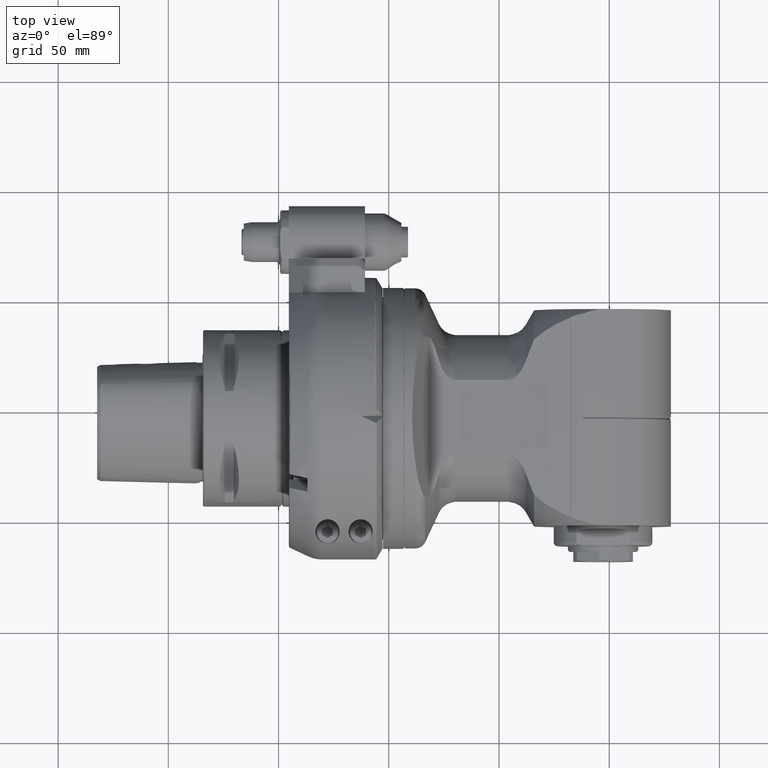
[diagram: clean part render]
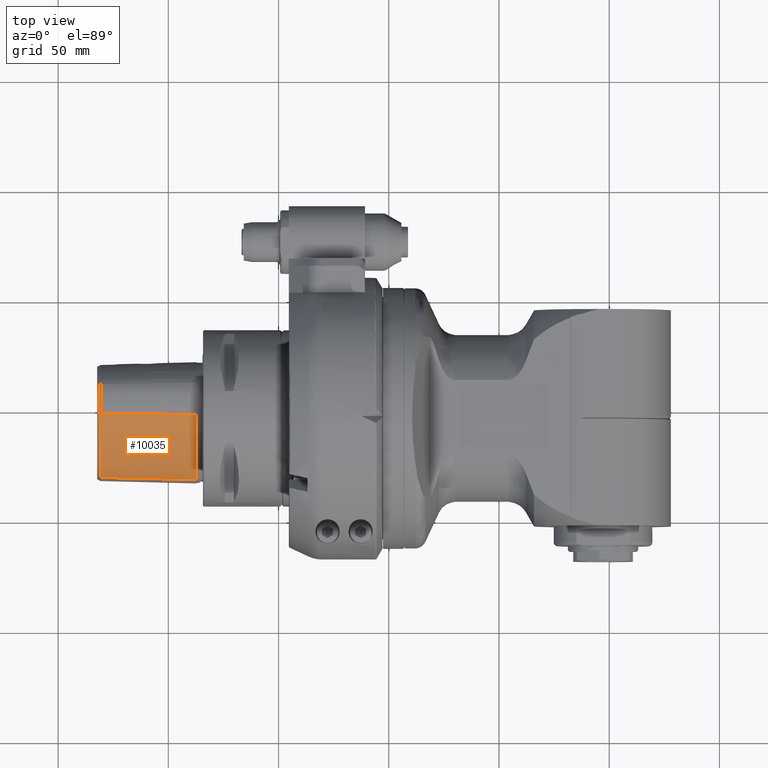
[diagram: same view with one face highlighted and labeled with its STEP entity id]
A machine part, top view. The second image highlights one B-rep face of the part: STEP entity #10035.
In plain terms, the highlighted face is a freeform B-spline surface patch.
Its self-contained STEP definition (entity closure, byte-faithful):
#29=B_SPLINE_SURFACE_WITH_KNOTS('',3,3,((#35080,#35081,#35082,#35083),(#35084,
#35085,#35086,#35087),(#35088,#35089,#35090,#35091),(#35092,#35093,#35094,
#35095),(#35096,#35097,#35098,#35099),(#35100,#35101,#35102,#35103),(#35104,
#35105,#35106,#35107),(#35108,#35109,#35110,#35111),(#35112,#35113,#35114,
#35115),(#35116,#35117,#35118,#35119),(#35120,#35121,#35122,#35123),(#35124,
#35125,#35126,#35127),(#35128,#35129,#35130,#35131),(#35132,#35133,#35134,
#35135),(#35136,#35137,#35138,#35139),(#35140,#35141,#35142,#35143),(#35144,
#35145,#35146,#35147),(#35148,#35149,#35150,#35151),(#35152,#35153,#35154,
#35155),(#35156,#35157,#35158,#35159),(#35160,#35161,#35162,#35163),(#35164,
#35165,#35166,#35167),(#35168,#35169,#35170,#35171),(#35172,#35173,#35174,
#35175),(#35176,#35177,#35178,#35179),(#35180,#35181,#35182,#35183),(#35184,
#35185,#35186,#35187),(#35188,#35189,#35190,#35191),(#35192,#35193,#35194,
#35195),(#35196,#35197,#35198,#35199),(#35200,#35201,#35202,#35203),(#35204,
#35205,#35206,#35207),(#35208,#35209,#35210,#35211)),.UNSPECIFIED.,.F.,
 .F.,.F.,(4,1,1,1,1,1,1,1,1,1,1,1,1,1,1,1,1,1,1,1,1,1,1,1,1,1,1,1,1,1,4),
(4,4),(-0.009678895987735,0.,1.755812057357E-5,0.02654417643325,0.05307082485072,
0.1061241216856,0.1326507701031,0.1459140943118,0.1591774225416,0.2122307382911,
0.2652840540407,0.2918107119155,0.3050740521438,0.3183374067492,0.4244442435926,
0.4655553216308,0.4861108770295,0.5066664422288,0.5888887030262,0.6299999136037,
0.650555523362,0.6711110941576,0.7533333676004,0.7944445043218,0.8355556165585,
0.9177778114212,0.9588889088526,0.9794444575682,0.9897222319261,1.,1.009959426524),
(0.3837668064959,0.60877464925),.UNSPECIFIED.);
#507=B_SPLINE_CURVE_WITH_KNOTS('',3,(#32485,#32486,#32487,#32488,#32489,
#32490,#32491,#32492,#32493,#32494,#32495,#32496),.UNSPECIFIED.,.F.,.F.,
(4,2,2,2,2,4),(-3.73515986466552,-3.2483887379573,-2.76792969662513,-1.81700921961345,
-0.907348478544817,-3.75621877282529E-5),.UNSPECIFIED.);
#515=B_SPLINE_CURVE_WITH_KNOTS('',3,(#34739,#34740,#34741,#34742,#34743,
#34744,#34745,#34746,#34747,#34748,#34749,#34750,#34751,#34752,#34753,#34754,
#34755,#34756,#34757,#34758,#34759,#34760,#34761,#34762,#34763,#34764,#34765,
#34766,#34767,#34768,#34769,#34770,#34771,#34772,#34773,#34774,#34775,#34776,
#34777,#34778,#34779,#34780,#34781,#34782,#34783,#34784,#34785,#34786,#34787,
#34788),.UNSPECIFIED.,.F.,.F.,(4,2,2,2,2,2,2,2,2,2,2,2,2,2,2,2,2,2,2,2,
2,2,2,2,4),(-3.62964790689344,-3.57366447870279,-3.5179251921807,-3.40636005816045,
-3.1827421152075,-3.03340532054786,-2.83405301358595,-2.56740587779593,
-2.41500930581448,-2.33376446134251,-2.14769455285171,-1.93504734590621,
-1.8215762978431,-1.7059610118641,-1.48931974654208,-1.30001548614399,-1.21723595916949,
-1.1396021063593,-0.852087380468686,-0.74467032737801,-0.650786046150101,
-0.568689160908651,-0.426007829943822,-0.212327658833966,-9.99999861583944E-7),
 .UNSPECIFIED.);
#1399=FACE_OUTER_BOUND('',#2083,.T.);
#2083=EDGE_LOOP('',(#9088,#9089,#9090,#9091));
#2698=LINE('',#35212,#3302);
#2699=LINE('',#35213,#3303);
#3302=VECTOR('',#13955,1.71315719354772);
#3303=VECTOR('',#13956,1.71315718548628);
#4754=VERTEX_POINT('',#32475);
#4755=VERTEX_POINT('',#32484);
#4763=VERTEX_POINT('',#34737);
#4764=VERTEX_POINT('',#34738);
#6181=EDGE_CURVE('',#4755,#4754,#507,.T.);
#6209=EDGE_CURVE('',#4763,#4764,#515,.T.);
#6221=EDGE_CURVE('',#4754,#4763,#2698,.T.);
#6222=EDGE_CURVE('',#4764,#4755,#2699,.T.);
#9088=ORIENTED_EDGE('',*,*,#6221,.T.);
#9089=ORIENTED_EDGE('',*,*,#6209,.T.);
#9090=ORIENTED_EDGE('',*,*,#6222,.T.);
#9091=ORIENTED_EDGE('',*,*,#6181,.T.);
#10035=ADVANCED_FACE('',(#1399),#29,.T.);
#13955=DIRECTION('',(-0.999684700869851,0.00368077782090682,-0.0248384927358788));
#13956=DIRECTION('',(0.999684698500766,-0.0228072276205692,0.0105039969390396));
#32475=CARTESIAN_POINT('',(-3.11023622051504,0.0567903481615564,1.06891926310362));
#32484=CARTESIAN_POINT('',(-3.11023622049379,-1.09792538067399,0.255564711646063));
#32485=CARTESIAN_POINT('Ctrl Pts',(-3.11023622047256,-1.09792538067455,
0.25556471164632));
#32486=CARTESIAN_POINT('Ctrl Pts',(-3.11023622047256,-1.07208427631544,
0.311634741314259));
#32487=CARTESIAN_POINT('Ctrl Pts',(-3.11023622047241,-1.04033356684336,
0.365793768103223));
#32488=CARTESIAN_POINT('Ctrl Pts',(-3.11023622047241,-0.969177217422757,
0.468389885761689));
#32489=CARTESIAN_POINT('Ctrl Pts',(-3.11023622047251,-0.929842894105256,
0.517050272748454));
#32490=CARTESIAN_POINT('Ctrl Pts',(-3.11023622047251,-0.803405203372755,
0.654406656244322));
#32491=CARTESIAN_POINT('Ctrl Pts',(-3.11023622047262,-0.706980815131984,
0.736084354219065));
#32492=CARTESIAN_POINT('Ctrl Pts',(-3.11023622047262,-0.50484758848306,
0.87259917292334));
#32493=CARTESIAN_POINT('Ctrl Pts',(-3.11023622047253,-0.398474531204259,
0.929290382322948));
#32494=CARTESIAN_POINT('Ctrl Pts',(-3.11023622047253,-0.177737664872527,
1.01817670516809));
#32495=CARTESIAN_POINT('Ctrl Pts',(-3.11023622047256,-0.0609818855787254,
1.05138866708757));
#32496=CARTESIAN_POINT('Ctrl Pts',(-3.11023622047256,0.0567903481614069,
1.06891926310463));
#34737=CARTESIAN_POINT('',(-4.8228532820442,0.0630961006200743,1.02636701035326));
#34738=CARTESIAN_POINT('',(-4.82285326619844,-1.05885301502519,0.237569713920052));
#34739=CARTESIAN_POINT('Ctrl Pts',(-4.82285328334573,0.0630961006863313,
1.02636700991425));
#34740=CARTESIAN_POINT('Ctrl Pts',(-4.82285352179595,0.0559366450489067,
1.02529804192293));
#34741=CARTESIAN_POINT('Ctrl Pts',(-4.82285328949689,0.0487502437082376,
1.02416893187218));
#34742=CARTESIAN_POINT('Ctrl Pts',(-4.82285306646271,0.0343517174964541,
1.02178451776442));
#34743=CARTESIAN_POINT('Ctrl Pts',(-4.82285344298923,0.0271784849756048,
1.02053696627365));
#34744=CARTESIAN_POINT('Ctrl Pts',(-4.82285282178226,0.00568509799811875,
1.01662240919514));
#34745=CARTESIAN_POINT('Ctrl Pts',(-4.82285313709951,-0.00861174527840103,
1.01378257992158));
#34746=CARTESIAN_POINT('Ctrl Pts',(-4.82285020033633,-0.0514031489375675,
1.00459108483549));
#34747=CARTESIAN_POINT('Ctrl Pts',(-4.82285927099588,-0.0797338960305622,
0.997576253682277));
#34748=CARTESIAN_POINT('Ctrl Pts',(-4.82285905043829,-0.126602254675317,
0.984503138280809));
#34749=CARTESIAN_POINT('Ctrl Pts',(-4.82285676868593,-0.145270004278713,
0.978900161504493));
#34750=CARTESIAN_POINT('Ctrl Pts',(-4.8228488178761,-0.188580333757137,
0.965008499000877));
#34751=CARTESIAN_POINT('Ctrl Pts',(-4.82285415401897,-0.213184133866468,
0.956429832328054));
#34752=CARTESIAN_POINT('Ctrl Pts',(-4.82285057686804,-0.269973733734239,
0.935071946309099));
#34753=CARTESIAN_POINT('Ctrl Pts',(-4.82285953374717,-0.302025209861077,
0.921809517704694));
#34754=CARTESIAN_POINT('Ctrl Pts',(-4.82285910456854,-0.351705112868696,
0.899374813812179));
#34755=CARTESIAN_POINT('Ctrl Pts',(-4.8228538983881,-0.369624055823687,
0.890887204150857));
#34756=CARTESIAN_POINT('Ctrl Pts',(-4.82285147201904,-0.3968558394708,0.877384288336395));
#34757=CARTESIAN_POINT('Ctrl Pts',(-4.82285351864993,-0.406297684811173,
0.872589429561362));
#34758=CARTESIAN_POINT('Ctrl Pts',(-4.82285341199883,-0.437114337825401,
0.856572989795745));
#34759=CARTESIAN_POINT('Ctrl Pts',(-4.8228501222983,-0.458293521611872,
0.844975920854651));
#34760=CARTESIAN_POINT('Ctrl Pts',(-4.82285505716315,-0.503149280027983,
0.819128914430072));
#34761=CARTESIAN_POINT('Ctrl Pts',(-4.82286003467279,-0.526735367927925,
0.804744619569772));
#34762=CARTESIAN_POINT('Ctrl Pts',(-4.82285805905502,-0.562328996087138,
0.781798158862852));
#34763=CARTESIAN_POINT('Ctrl Pts',(-4.82285488809651,-0.57460328460696,
0.773651413193814));
#34764=CARTESIAN_POINT('Ctrl Pts',(-4.82285057741087,-0.599149259198662,
0.7568827589201));
#34765=CARTESIAN_POINT('Ctrl Pts',(-4.8228536721594,-0.611451518939613,
0.748230601350048));
#34766=CARTESIAN_POINT('Ctrl Pts',(-4.82285275262779,-0.646356982637835,
0.722968862129429));
#34767=CARTESIAN_POINT('Ctrl Pts',(-4.82285019601125,-0.668755316420956,
0.705876709079128));
#34768=CARTESIAN_POINT('Ctrl Pts',(-4.82286295688204,-0.709840346159733,
0.672763067006784));
#34769=CARTESIAN_POINT('Ctrl Pts',(-4.82286620449471,-0.728643119314689,
0.656877469092071));
#34770=CARTESIAN_POINT('Ctrl Pts',(-4.82286519477107,-0.755109062610928,
0.633416110166321));
#34771=CARTESIAN_POINT('Ctrl Pts',(-4.82286403657592,-0.763086893204936,
0.626194336371901));
#34772=CARTESIAN_POINT('Ctrl Pts',(-4.82285994124232,-0.77839737103506,
0.612038309813045));
#34773=CARTESIAN_POINT('Ctrl Pts',(-4.8228567725426,-0.785734549412934,
0.605118483487206));
#34774=CARTESIAN_POINT('Ctrl Pts',(-4.82284058533403,-0.819891693840514,
0.572253178783561));
#34775=CARTESIAN_POINT('Ctrl Pts',(-4.82285524539746,-0.846427877154744,
0.544800246094539));
#34776=CARTESIAN_POINT('Ctrl Pts',(-4.82285363771878,-0.880979800712922,
0.505985631986874));
#34777=CARTESIAN_POINT('Ctrl Pts',(-4.82285293802087,-0.890217812005329,
0.49528460165711));
#34778=CARTESIAN_POINT('Ctrl Pts',(-4.82285381231454,-0.907211436644774,
0.47495907696597));
#34779=CARTESIAN_POINT('Ctrl Pts',(-4.82285514545366,-0.915005839419257,
0.465370492112137));
#34780=CARTESIAN_POINT('Ctrl Pts',(-4.82285600837661,-0.929357966036491,
0.447192702778566));
#34781=CARTESIAN_POINT('Ctrl Pts',(-4.82285549034177,-0.935946561800712,
0.438631105822743));
#34782=CARTESIAN_POINT('Ctrl Pts',(-4.82285001846367,-0.95368051882836,
0.414968615646326));
#34783=CARTESIAN_POINT('Ctrl Pts',(-4.82285368109396,-0.964744603363772,
0.399512028818674));
#34784=CARTESIAN_POINT('Ctrl Pts',(-4.82285090472737,-0.991223962849445,
0.360582596227051));
#34785=CARTESIAN_POINT('Ctrl Pts',(-4.82286095382251,-1.00622696130295,
0.336719937978846));
#34786=CARTESIAN_POINT('Ctrl Pts',(-4.82284930908064,-1.03415235044117,
0.287952339126964));
#34787=CARTESIAN_POINT('Ctrl Pts',(-4.82285341835966,-1.04718784016137,
0.262874820217238));
#34788=CARTESIAN_POINT('Ctrl Pts',(-4.82285327231419,-1.05885301390522,
0.237569713403711));
#35080=CARTESIAN_POINT('Ctrl Pts',(-3.07598694570094,-1.10454616326732,
0.242983601142992));
#35081=CARTESIAN_POINT('Ctrl Pts',(-3.66969507614921,-1.09090342336417,
0.236962578075512));
#35082=CARTESIAN_POINT('Ctrl Pts',(-4.26340320659724,-1.07726068346102,
0.230941555008071));
#35083=CARTESIAN_POINT('Ctrl Pts',(-4.85711133704567,-1.06361794355748,
0.22492053194063));
#35084=CARTESIAN_POINT('Ctrl Pts',(-3.0759838474137,-1.10263501654488,0.24731268341563));
#35085=CARTESIAN_POINT('Ctrl Pts',(-3.66969127921535,-1.08902482056535,
0.241217828020157));
#35086=CARTESIAN_POINT('Ctrl Pts',(-4.26339871101693,-1.07541462458543,
0.235122972624685));
#35087=CARTESIAN_POINT('Ctrl Pts',(-4.8571061428189,-1.06180442860551,0.229028117229173));
#35088=CARTESIAN_POINT('Ctrl Pts',(-3.0759838677637,-1.10068422642992,0.251634194379528));
#35089=CARTESIAN_POINT('Ctrl Pts',(-3.66969129433583,-1.08710663240118,
0.245466782508701));
#35090=CARTESIAN_POINT('Ctrl Pts',(-4.26339872090827,-1.07352903837283,
0.239299370637874));
#35091=CARTESIAN_POINT('Ctrl Pts',(-4.85710614748031,-1.05995144434409,
0.233131958767047));
#35092=CARTESIAN_POINT('Ctrl Pts',(-3.07598386783591,-1.09327040512362,
0.26772017569063));
#35093=CARTESIAN_POINT('Ctrl Pts',(-3.66969129237323,-1.07981467302008,
0.261287104386614));
#35094=CARTESIAN_POINT('Ctrl Pts',(-4.26339871691102,-1.06635894091654,
0.254854033082717));
#35095=CARTESIAN_POINT('Ctrl Pts',(-4.85710614144842,-1.05290320881299,
0.24842096177874));
#35096=CARTESIAN_POINT('Ctrl Pts',(-3.07598386819189,-1.08190283139606,
0.291055457772638));
#35097=CARTESIAN_POINT('Ctrl Pts',(-3.66969128739173,-1.06862417482205,
0.284258377912402));
#35098=CARTESIAN_POINT('Ctrl Pts',(-4.26339870659134,-1.05534551824764,
0.277461298052126));
#35099=CARTESIAN_POINT('Ctrl Pts',(-4.85710612579094,-1.04206686167362,
0.27066421819189));
#35100=CARTESIAN_POINT('Ctrl Pts',(-3.07598386865398,-1.05739382933189,
0.336770550892795));
#35101=CARTESIAN_POINT('Ctrl Pts',(-3.66969127943268,-1.04447067413583,
0.329316314560354));
#35102=CARTESIAN_POINT('Ctrl Pts',(-4.26339869021181,-1.03154751893937,
0.321862078227953));
#35103=CARTESIAN_POINT('Ctrl Pts',(-4.85710610099055,-1.01862436374291,
0.314407841895551));
#35104=CARTESIAN_POINT('Ctrl Pts',(-3.07598386885421,-1.03038552275433,
0.381081914140787));
#35105=CARTESIAN_POINT('Ctrl Pts',(-3.66969127633937,-1.01782406844567,
0.373035670522047));
#35106=CARTESIAN_POINT('Ctrl Pts',(-4.2633986838248,-1.00526261413701,0.364989426903268));
#35107=CARTESIAN_POINT('Ctrl Pts',(-4.85710609131024,-0.992701159828346,
0.356943183284528));
#35108=CARTESIAN_POINT('Ctrl Pts',(-3.07598386920106,-1.0048766864815,0.418632002866929));
#35109=CARTESIAN_POINT('Ctrl Pts',(-3.66969127064646,-0.992628307781102,
0.410121722025197));
#35110=CARTESIAN_POINT('Ctrl Pts',(-4.26339867209213,-0.980379929080709,
0.401611441183071));
#35111=CARTESIAN_POINT('Ctrl Pts',(-4.8571060735378,-0.968131550380315,
0.393101160341299));
#35112=CARTESIAN_POINT('Ctrl Pts',(-3.0759838697213,-0.989808128500394,
0.439740672156693));
#35113=CARTESIAN_POINT('Ctrl Pts',(-3.66969126215197,-0.97773633534685,
0.430982915619685));
#35114=CARTESIAN_POINT('Ctrl Pts',(-4.26339865458307,-0.965664542193307,
0.422225159082283));
#35115=CARTESIAN_POINT('Ctrl Pts',(-4.85710604701378,-0.953592749039764,
0.413467402545276));
#35116=CARTESIAN_POINT('Ctrl Pts',(-3.07598387041299,-0.966735650065748,
0.471055685699606));
#35117=CARTESIAN_POINT('Ctrl Pts',(-3.66969125085354,-0.954928062751575,
0.46194244956063));
#35118=CARTESIAN_POINT('Ctrl Pts',(-4.26339863129409,-0.943120475437008,
0.452829213421654));
#35119=CARTESIAN_POINT('Ctrl Pts',(-4.85710601173465,-0.931312888122835,
0.443715977283071));
#35120=CARTESIAN_POINT('Ctrl Pts',(-3.07598387040776,-0.930407662749213,
0.516724545494094));
#35121=CARTESIAN_POINT('Ctrl Pts',(-3.66969125094016,-0.919000711413779,
0.507111503309055));
#35122=CARTESIAN_POINT('Ctrl Pts',(-4.26339863147283,-0.907593760078347,
0.497498461124016));
#35123=CARTESIAN_POINT('Ctrl Pts',(-4.85710601200512,-0.896186808742913,
0.487885418938976));
#35124=CARTESIAN_POINT('Ctrl Pts',(-3.07598387081587,-0.887275110059449,
0.565148507170079));
#35125=CARTESIAN_POINT('Ctrl Pts',(-3.66969124427362,-0.876315173610236,
0.555031524277165));
#35126=CARTESIAN_POINT('Ctrl Pts',(-4.2633986177315,-0.86535523716063,0.544914541383858));
#35127=CARTESIAN_POINT('Ctrl Pts',(-4.85710599118937,-0.854395300711417,
0.534797558490945));
#35128=CARTESIAN_POINT('Ctrl Pts',(-3.07598387113752,-0.855780387259055,
0.597826523531102));
#35129=CARTESIAN_POINT('Ctrl Pts',(-3.66969123902008,-0.845132313462598,
0.587384888570472));
#35130=CARTESIAN_POINT('Ctrl Pts',(-4.26339860690276,-0.834484239666142,
0.576943253609842));
#35131=CARTESIAN_POINT('Ctrl Pts',(-4.85710597478543,-0.823836165870079,
0.566501618649213));
#35132=CARTESIAN_POINT('Ctrl Pts',(-3.07598387166941,-0.837433331443307,
0.61615138496063));
#35133=CARTESIAN_POINT('Ctrl Pts',(-3.66969123033228,-0.826962999359843,
0.605531912000394));
#35134=CARTESIAN_POINT('Ctrl Pts',(-4.26339858899528,-0.816492667276772,
0.594912439040157));
#35135=CARTESIAN_POINT('Ctrl Pts',(-4.85710594765827,-0.806022335193307,
0.584292966080315));
#35136=CARTESIAN_POINT('Ctrl Pts',(-3.07598387271976,-0.79099637235315,
0.661381818099606));
#35137=CARTESIAN_POINT('Ctrl Pts',(-3.66969121317756,-0.78097321221063,
0.650333083740157));
#35138=CARTESIAN_POINT('Ctrl Pts',(-4.26339855363504,-0.770950052067716,
0.639284349380709));
#35139=CARTESIAN_POINT('Ctrl Pts',(-4.85710589409252,-0.760926891925197,
0.62823561502126));
#35140=CARTESIAN_POINT('Ctrl Pts',(-3.07598387221965,-0.731766359167716,
0.712932402796063));
#35141=CARTESIAN_POINT('Ctrl Pts',(-3.66969122134567,-0.722292722962598,
0.701407650799606));
#35142=CARTESIAN_POINT('Ctrl Pts',(-4.26339857047126,-0.71281908675748,
0.689882898802756));
#35143=CARTESIAN_POINT('Ctrl Pts',(-4.85710591959724,-0.703345450552756,
0.678358146806299));
#35144=CARTESIAN_POINT('Ctrl Pts',(-3.07598387270118,-0.666535158197244,
0.762619667047244));
#35145=CARTESIAN_POINT('Ctrl Pts',(-3.66969121347992,-0.657643223496457,
0.750646558834646));
#35146=CARTESIAN_POINT('Ctrl Pts',(-4.26339855425906,-0.648751288795669,
0.738673450622441));
#35147=CARTESIAN_POINT('Ctrl Pts',(-4.8571058950378,-0.639859354094488,
0.726700342409843));
#35148=CARTESIAN_POINT('Ctrl Pts',(-3.0759838732148,-0.633936483229134,
0.786098214883071));
#35149=CARTESIAN_POINT('Ctrl Pts',(-3.66969120509134,-0.625331897001181,
0.77391788161378));
#35150=CARTESIAN_POINT('Ctrl Pts',(-4.26339853696772,-0.616727310773228,
0.761737548344882));
#35151=CARTESIAN_POINT('Ctrl Pts',(-4.85710586884409,-0.608122724545276,
0.74955721507559));
#35152=CARTESIAN_POINT('Ctrl Pts',(-3.07598387391177,-0.584427099186614,
0.820436928474409));
#35153=CARTESIAN_POINT('Ctrl Pts',(-3.66969119370748,-0.576259045398819,
0.807956804969685));
#35154=CARTESIAN_POINT('Ctrl Pts',(-4.26339851350354,-0.568090991611024,
0.795476681464567));
#35155=CARTESIAN_POINT('Ctrl Pts',(-4.85710583329961,-0.559922937823622,
0.782996557959842));
#35156=CARTESIAN_POINT('Ctrl Pts',(-3.0759838738661,-0.524931246015354,
0.857911331575591));
#35157=CARTESIAN_POINT('Ctrl Pts',(-3.66969119445354,-0.517283078237402,
0.845104910391339));
#35158=CARTESIAN_POINT('Ctrl Pts',(-4.26339851504094,-0.509634910459449,
0.832298489207087));
#35159=CARTESIAN_POINT('Ctrl Pts',(-4.85710583562835,-0.50198674268189,
0.819492068022834));
#35160=CARTESIAN_POINT('Ctrl Pts',(-3.07598387425252,-0.46359593792874,
0.892167715559843));
#35161=CARTESIAN_POINT('Ctrl Pts',(-3.66969118814173,-0.456481549702756,
0.87906048952441));
#35162=CARTESIAN_POINT('Ctrl Pts',(-4.2633985020311,-0.449367161476772,
0.865953263488976));
#35163=CARTESIAN_POINT('Ctrl Pts',(-4.85710581592008,-0.442252773251181,
0.852846037453543));
#35164=CARTESIAN_POINT('Ctrl Pts',(-3.07598387476803,-0.428039545801969,
0.910811059358661));
#35165=CARTESIAN_POINT('Ctrl Pts',(-3.66969117972165,-0.421235581985039,
0.897540639662992));
#35166=CARTESIAN_POINT('Ctrl Pts',(-4.2633984846752,-0.41443161816811,0.884270219966929));
#35167=CARTESIAN_POINT('Ctrl Pts',(-4.85710578962913,-0.407627654351181,
0.87099980027126));
#35168=CARTESIAN_POINT('Ctrl Pts',(-3.07598387546776,-0.374204117990157,
0.937839298875591));
#35169=CARTESIAN_POINT('Ctrl Pts',(-3.66969116829291,-0.367873158945551,
0.924334145168504));
#35170=CARTESIAN_POINT('Ctrl Pts',(-4.26339846111811,-0.361542199900906,
0.910828991461417));
#35171=CARTESIAN_POINT('Ctrl Pts',(-4.8571057539437,-0.355211240856299,
0.897323837754331));
#35172=CARTESIAN_POINT('Ctrl Pts',(-3.07598387537669,-0.309983539790709,
0.966597218078346));
#35173=CARTESIAN_POINT('Ctrl Pts',(-3.66969116978071,-0.304223156308268,
0.952837411577165));
#35174=CARTESIAN_POINT('Ctrl Pts',(-4.26339846418425,-0.298462772825787,
0.939077605076378));
#35175=CARTESIAN_POINT('Ctrl Pts',(-4.85710575858819,-0.292702389343307,
0.925317798575197));
#35176=CARTESIAN_POINT('Ctrl Pts',(-3.07598387593327,-0.234927242861339,
0.995402024083465));
#35177=CARTESIAN_POINT('Ctrl Pts',(-3.66969116068976,-0.229846034144331,
0.981378717821654));
#35178=CARTESIAN_POINT('Ctrl Pts',(-4.26339844544606,-0.224764825427323,
0.967355411560236));
#35179=CARTESIAN_POINT('Ctrl Pts',(-4.85710573020236,-0.219683616710315,
0.953332105298819));
#35180=CARTESIAN_POINT('Ctrl Pts',(-3.07598387643839,-0.158854749455512,
1.02141541245866));
#35181=CARTESIAN_POINT('Ctrl Pts',(-3.66969115243937,-0.154477021321811,
1.00715458236772));
#35182=CARTESIAN_POINT('Ctrl Pts',(-4.26339842844055,-0.150099293188071,
0.992893752277165));
#35183=CARTESIAN_POINT('Ctrl Pts',(-4.85710570444134,-0.14572156505437,
0.97863292218622));
#35184=CARTESIAN_POINT('Ctrl Pts',(-3.07598387659161,-0.0813952866437008,
1.04310681830433));
#35185=CARTESIAN_POINT('Ctrl Pts',(-3.66969114993661,-0.0777659280884252,
1.02863637020236));
#35186=CARTESIAN_POINT('Ctrl Pts',(-4.26339842328189,-0.0741365695331102,
1.01416592210039));
#35187=CARTESIAN_POINT('Ctrl Pts',(-4.85710569662677,-0.0705072109778346,
0.999695473998425));
#35188=CARTESIAN_POINT('Ctrl Pts',(-3.07598387700362,-0.0126445117506142,
1.05790698642244));
#35189=CARTESIAN_POINT('Ctrl Pts',(-3.66969114320669,-0.00971741202533465,
1.04328200452402));
#35190=CARTESIAN_POINT('Ctrl Pts',(-4.26339840941024,-0.00679031230005118,
1.0286570226252));
#35191=CARTESIAN_POINT('Ctrl Pts',(-4.85710567561339,-0.00386321257477047,
1.01403204072677));
#35192=CARTESIAN_POINT('Ctrl Pts',(-3.07598387737142,0.0219444108790118,
1.06421292384567));
#35193=CARTESIAN_POINT('Ctrl Pts',(-3.66969113720039,0.0245064693356535,
1.04952081866339));
#35194=CARTESIAN_POINT('Ctrl Pts',(-4.26339839702913,0.0270685277922992,
1.0348287134811));
#35195=CARTESIAN_POINT('Ctrl Pts',(-4.85710565685827,0.0296305862489409,
1.02013660829921));
#35196=CARTESIAN_POINT('Ctrl Pts',(-3.07598387784701,0.0417661924311024,
1.06749657659685));
#35197=CARTESIAN_POINT('Ctrl Pts',(-3.6696911294315,0.0441157983234646,
1.05276924550079));
#35198=CARTESIAN_POINT('Ctrl Pts',(-4.26339838101614,0.0464654042157874,
1.03804191440472));
#35199=CARTESIAN_POINT('Ctrl Pts',(-4.85710563260079,0.0488150101081496,
1.02331458330827));
#35200=CARTESIAN_POINT('Ctrl Pts',(-3.07598387832685,0.0565061317357087,
1.06977403679252));
#35201=CARTESIAN_POINT('Ctrl Pts',(-3.66969112159488,0.0586955358210236,
1.05502208394882));
#35202=CARTESIAN_POINT('Ctrl Pts',(-4.26339836486299,0.0608849399063386,
1.04027013110551));
#35203=CARTESIAN_POINT('Ctrl Pts',(-4.8571056081311,0.0630743439916535,
1.02551817826181));
#35204=CARTESIAN_POINT('Ctrl Pts',(-3.07598387806094,0.0662982853047638,
1.0711778516878));
#35205=CARTESIAN_POINT('Ctrl Pts',(-3.6696911259378,0.0683747046819685,
1.05641252430236));
#35206=CARTESIAN_POINT('Ctrl Pts',(-4.26339837381496,0.0704511240591339,
1.04164719691693));
#35207=CARTESIAN_POINT('Ctrl Pts',(-4.85710562169173,0.0725275434362992,
1.0268818695315));
#35208=CARTESIAN_POINT('Ctrl Pts',(-3.07598387751232,0.0711211698278346,
1.07184236288386));
#35209=CARTESIAN_POINT('Ctrl Pts',(-3.66969113489803,0.0731393323852756,
1.05707166058031));
#35210=CARTESIAN_POINT('Ctrl Pts',(-4.26339839228346,0.0751574949427165,
1.04230095827677));
#35211=CARTESIAN_POINT('Ctrl Pts',(-4.85710564966929,0.0771756575001575,
1.02753025597323));
#35212=CARTESIAN_POINT('',(-3.1102362206,0.0567903480915748,1.06891926309094));
#35213=CARTESIAN_POINT('',(-4.8228532449937,-1.0588530147937,0.23756971381311));